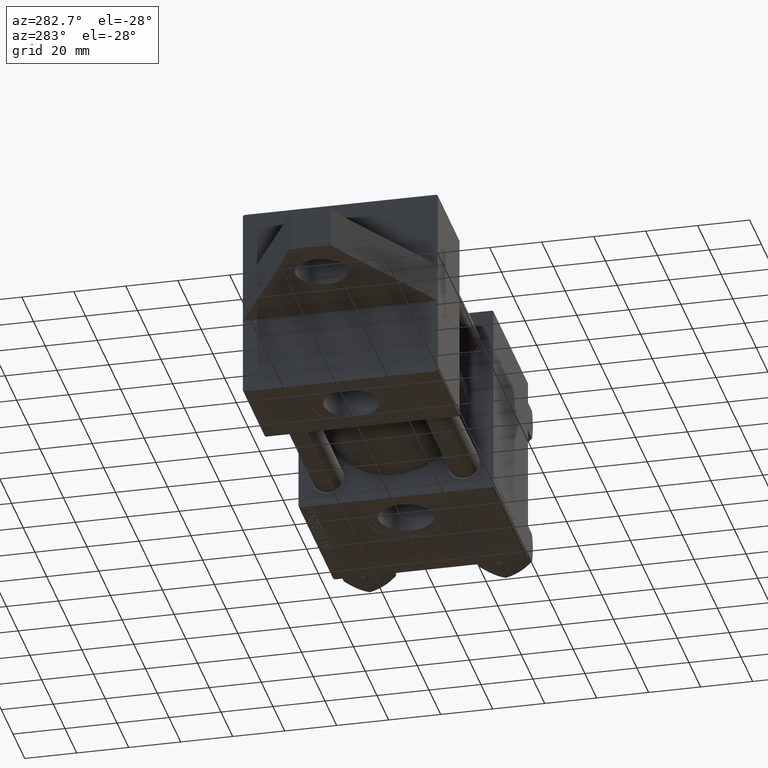
[diagram: clean part render]
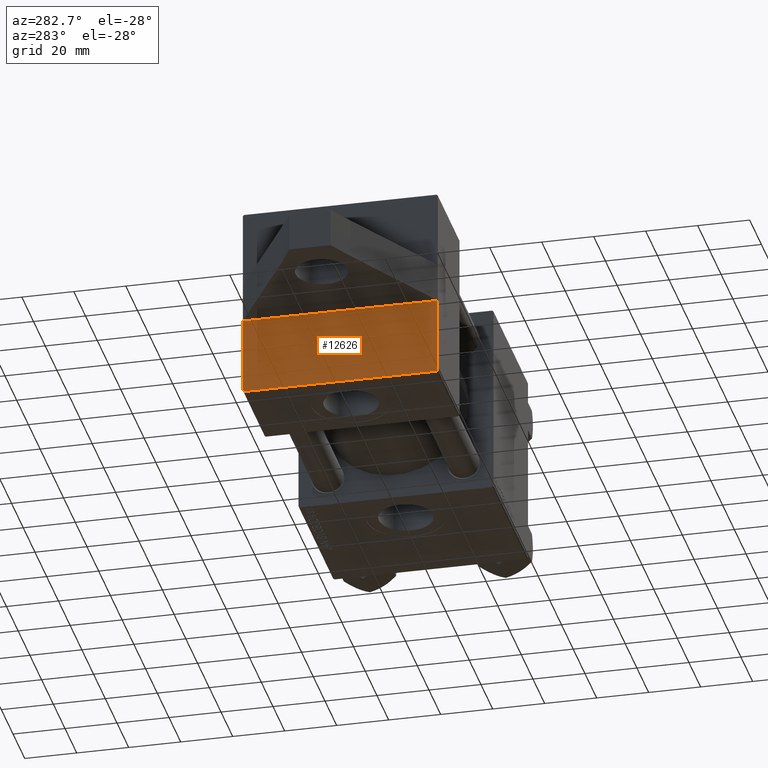
[diagram: same view with one face highlighted and labeled with its STEP entity id]
A machine part, auxiliary view. The second image highlights one B-rep face of the part: STEP entity #12626.
In plain terms, the highlighted planar face has unit normal (-1, -0, 0).
Its self-contained STEP definition (entity closure, byte-faithful):
#165 = EDGE_CURVE ( 'NONE', #29935, #45563, #31404, .T. ) ;
#545 = VECTOR ( 'NONE', #36869, 1000.000000000000000 ) ;
#757 = LINE ( 'NONE', #19471, #545 ) ;
#3044 = DIRECTION ( 'NONE',  ( 0.000000000000000000, 0.000000000000000000, -1.000000000000000000 ) ) ;
#5962 = CARTESIAN_POINT ( 'NONE',  ( 0.000000000000000000, -7.500000000000000000, 37.49999999999999289 ) ) ;
#6105 = LINE ( 'NONE', #6331, #20833 ) ;
#6118 = LINE ( 'NONE', #6815, #44238 ) ;
#6331 = CARTESIAN_POINT ( 'NONE',  ( 0.000000000000000000, 37.49999999999999289, 37.50000000000000000 ) ) ;
#6815 = CARTESIAN_POINT ( 'NONE',  ( 0.000000000000000000, -7.500000000000000000, 37.49999999999999289 ) ) ;
#6892 = PLANE ( 'NONE',  #9603 ) ;
#7710 = CARTESIAN_POINT ( 'NONE',  ( 0.000000000000000000, -37.50000000000000711, 36.99999999999999289 ) ) ;
#8512 = LINE ( 'NONE', #22862, #12534 ) ;
#9511 = EDGE_CURVE ( 'NONE', #29935, #29367, #8512, .T. ) ;
#9603 = AXIS2_PLACEMENT_3D ( 'NONE', #10426, #35329, #39791 ) ;
#10192 = FACE_OUTER_BOUND ( 'NONE', #27970, .T. ) ;
#10426 = CARTESIAN_POINT ( 'NONE',  ( 0.000000000000000000, 0.000000000000000000, 0.000000000000000000 ) ) ;
#10588 = ORIENTED_EDGE ( 'NONE', *, *, #9511, .T. ) ;
#10693 = EDGE_CURVE ( 'NONE', #21830, #29367, #6105, .T. ) ;
#12534 = VECTOR ( 'NONE', #29670, 1000.000000000000114 ) ;
#12626 = ADVANCED_FACE ( 'NONE', ( #10192 ), #6892, .T. ) ;
#13147 = DIRECTION ( 'NONE',  ( 0.000000000000000000, -1.000000000000000000, -9.251858538542971581E-17 ) ) ;
#16598 = EDGE_CURVE ( 'NONE', #30230, #45563, #29965, .T. ) ;
#17876 = EDGE_CURVE ( 'NONE', #38804, #30230, #757, .T. ) ;
#19471 = CARTESIAN_POINT ( 'NONE',  ( 0.000000000000000000, 37.49999999999999289, -37.50000000000000000 ) ) ;
#20833 = VECTOR ( 'NONE', #13147, 1000.000000000000000 ) ;
#21261 = CARTESIAN_POINT ( 'NONE',  ( 0.000000000000000000, -37.00000000000002132, -37.50000000000000711 ) ) ;
#21830 = VERTEX_POINT ( 'NONE', #5962 ) ;
#22797 = CARTESIAN_POINT ( 'NONE',  ( 0.000000000000000000, -37.00000000000000711, 37.49999999999999289 ) ) ;
#22862 = CARTESIAN_POINT ( 'NONE',  ( -0.000000000000000000, -37.25000000000000000, 37.25000000000000000 ) ) ;
#24960 = CARTESIAN_POINT ( 'NONE',  ( 0.000000000000000000, -37.50000000000000000, -37.00000000000003553 ) ) ;
#25454 = ORIENTED_EDGE ( 'NONE', *, *, #17876, .T. ) ;
#26028 = EDGE_CURVE ( 'NONE', #21830, #38804, #6118, .T. ) ;
#26639 = VECTOR ( 'NONE', #27878, 1000.000000000000000 ) ;
#27519 = CARTESIAN_POINT ( 'NONE',  ( 0.000000000000000000, -7.500000000000000000, -37.50000000000000711 ) ) ;
#27550 = VECTOR ( 'NONE', #29274, 1000.000000000000000 ) ;
#27878 = DIRECTION ( 'NONE',  ( 0.000000000000000000, 9.251858538542971581E-17, -1.000000000000000000 ) ) ;
#27970 = EDGE_LOOP ( 'NONE', ( #45216, #44480, #25454, #43657, #37995, #10588 ) ) ;
#29274 = DIRECTION ( 'NONE',  ( 0.000000000000000000, -0.7071067811865524577, 0.7071067811865426878 ) ) ;
#29367 = VERTEX_POINT ( 'NONE', #22797 ) ;
#29670 = DIRECTION ( 'NONE',  ( -0.000000000000000000, 0.7071067811865474617, 0.7071067811865474617 ) ) ;
#29935 = VERTEX_POINT ( 'NONE', #7710 ) ;
#29965 = LINE ( 'NONE', #36550, #27550 ) ;
#30230 = VERTEX_POINT ( 'NONE', #21261 ) ;
#31404 = LINE ( 'NONE', #45966, #26639 ) ;
#35329 = DIRECTION ( 'NONE',  ( -1.000000000000000000, 0.000000000000000000, -0.000000000000000000 ) ) ;
#36550 = CARTESIAN_POINT ( 'NONE',  ( 0.000000000000000000, -37.24999999999975842, -37.25000000000027001 ) ) ;
#36869 = DIRECTION ( 'NONE',  ( 0.000000000000000000, -1.000000000000000000, -9.251858538542972814E-17 ) ) ;
#37995 = ORIENTED_EDGE ( 'NONE', *, *, #165, .F. ) ;
#38804 = VERTEX_POINT ( 'NONE', #27519 ) ;
#39791 = DIRECTION ( 'NONE',  ( -0.000000000000000000, 0.000000000000000000, 1.000000000000000000 ) ) ;
#43657 = ORIENTED_EDGE ( 'NONE', *, *, #16598, .T. ) ;
#44238 = VECTOR ( 'NONE', #3044, 1000.000000000000000 ) ;
#44480 = ORIENTED_EDGE ( 'NONE', *, *, #26028, .T. ) ;
#45216 = ORIENTED_EDGE ( 'NONE', *, *, #10693, .F. ) ;
#45563 = VERTEX_POINT ( 'NONE', #24960 ) ;
#45966 = CARTESIAN_POINT ( 'NONE',  ( 0.000000000000000000, -37.50000000000000711, 37.49999999999999289 ) ) ;